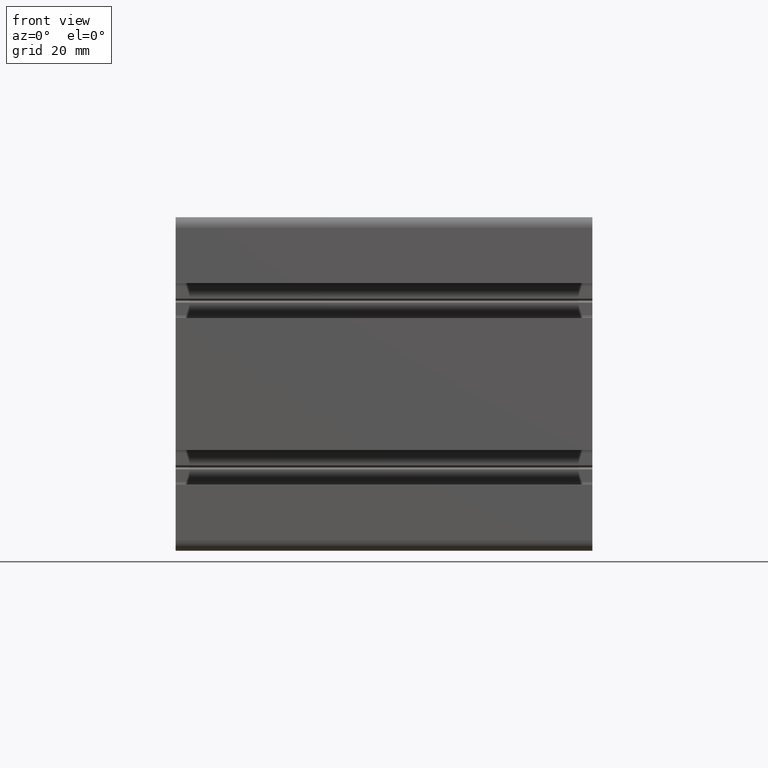
[diagram: clean part render]
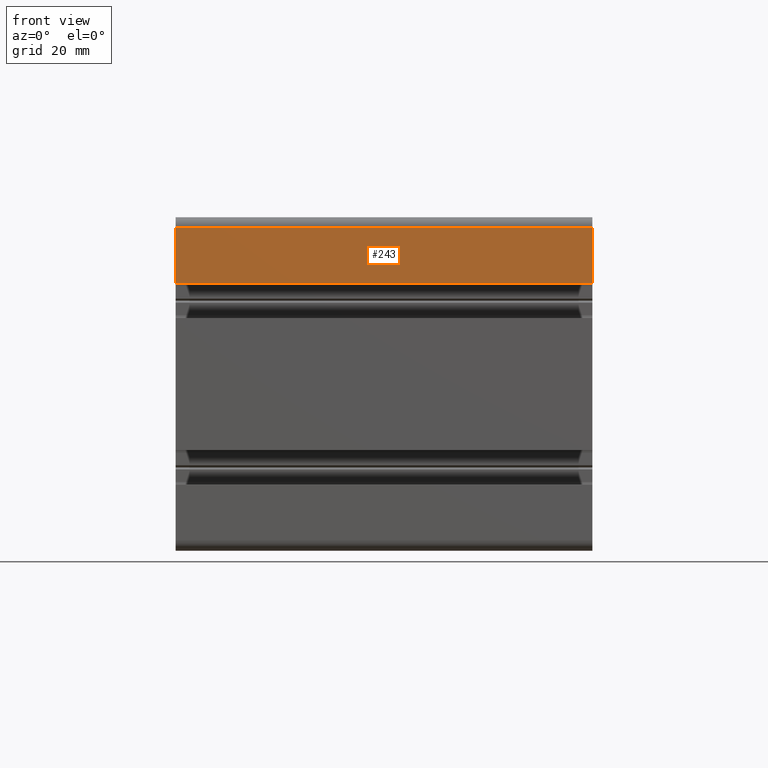
[diagram: same view with one face highlighted and labeled with its STEP entity id]
A machine part, front view. The second image highlights one B-rep face of the part: STEP entity #243.
In plain terms, the highlighted planar face has unit normal (-0, 1, 0).
Its self-contained STEP definition (entity closure, byte-faithful):
#243 = ADVANCED_FACE ( 'NONE', ( #7362 ), #4537, .F. ) ;
#1813 = ORIENTED_EDGE ( 'NONE', *, *, #11571, .T. ) ;
#1864 = EDGE_LOOP ( 'NONE', ( #1813, #2078, #1908, #2632 ) ) ;
#1908 = ORIENTED_EDGE ( 'NONE', *, *, #11549, .F. ) ;
#2078 = ORIENTED_EDGE ( 'NONE', *, *, #11563, .F. ) ;
#2632 = ORIENTED_EDGE ( 'NONE', *, *, #4701, .T. ) ;
#3440 = CARTESIAN_POINT ( 'NONE',  ( 0.0000000000000000000, -59.99986200003370800, 24.15130799999053200 ) ) ;
#3578 = CARTESIAN_POINT ( 'NONE',  ( 100.0000000000000000, -59.99986200003370800, 37.49986200000162000 ) ) ;
#4264 = VECTOR ( 'NONE', #8653, 1000.000000000000000 ) ;
#4269 = LINE ( 'NONE', #8385, #4264 ) ;
#4537 = PLANE ( 'NONE',  #4832 ) ;
#4648 = DIRECTION ( 'NONE',  ( -0.0000000000000000000, 1.000000000000000000, 0.0000000000000000000 ) ) ;
#4701 = EDGE_CURVE ( 'NONE', #7346, #6496, #4269, .T. ) ;
#4832 = AXIS2_PLACEMENT_3D ( 'NONE', #4849, #4648, #5361 ) ;
#4849 = CARTESIAN_POINT ( 'NONE',  ( 100.0000000000000000, -59.99986200003370800, 37.49986200000162000 ) ) ;
#5361 = DIRECTION ( 'NONE',  ( 0.0000000000000000000, -0.0000000000000000000, 1.000000000000000000 ) ) ;
#6496 = VERTEX_POINT ( 'NONE', #8514 ) ;
#6650 = VERTEX_POINT ( 'NONE', #8627 ) ;
#7104 = VERTEX_POINT ( 'NONE', #3440 ) ;
#7346 = VERTEX_POINT ( 'NONE', #3578 ) ;
#7362 = FACE_OUTER_BOUND ( 'NONE', #1864, .T. ) ;
#8385 = CARTESIAN_POINT ( 'NONE',  ( 100.0000000000000000, -59.99986200003370800, 37.49986200000162000 ) ) ;
#8514 = CARTESIAN_POINT ( 'NONE',  ( 0.0000000000000000000, -59.99986200003370800, 37.49986200000162000 ) ) ;
#8627 = CARTESIAN_POINT ( 'NONE',  ( 100.0000000000000000, -59.99986200003370800, 24.15130799999053200 ) ) ;
#8653 = DIRECTION ( 'NONE',  ( -1.000000000000000000, -0.0000000000000000000, -0.0000000000000000000 ) ) ;
#9542 = DIRECTION ( 'NONE',  ( 0.0000000000000000000, 0.0000000000000000000, -1.000000000000000000 ) ) ;
#9567 = DIRECTION ( 'NONE',  ( 0.0000000000000000000, 0.0000000000000000000, -1.000000000000000000 ) ) ;
#9659 = CARTESIAN_POINT ( 'NONE',  ( 100.0000000000000000, -59.99986200003370800, 24.15130799999053200 ) ) ;
#9704 = CARTESIAN_POINT ( 'NONE',  ( 100.0000000000000000, -59.99986200003370800, 37.49986200000162000 ) ) ;
#9767 = CARTESIAN_POINT ( 'NONE',  ( 0.0000000000000000000, -59.99986200003370800, 37.49986200000162000 ) ) ;
#9965 = DIRECTION ( 'NONE',  ( -1.000000000000000000, -0.0000000000000000000, -0.0000000000000000000 ) ) ;
#10251 = VECTOR ( 'NONE', #9965, 1000.000000000000000 ) ;
#10290 = VECTOR ( 'NONE', #9542, 1000.000000000000000 ) ;
#10313 = LINE ( 'NONE', #9767, #10318 ) ;
#10318 = VECTOR ( 'NONE', #9567, 1000.000000000000000 ) ;
#10365 = LINE ( 'NONE', #9704, #10290 ) ;
#10370 = LINE ( 'NONE', #9659, #10251 ) ;
#11549 = EDGE_CURVE ( 'NONE', #7346, #6650, #10365, .T. ) ;
#11563 = EDGE_CURVE ( 'NONE', #6650, #7104, #10370, .T. ) ;
#11571 = EDGE_CURVE ( 'NONE', #6496, #7104, #10313, .T. ) ;